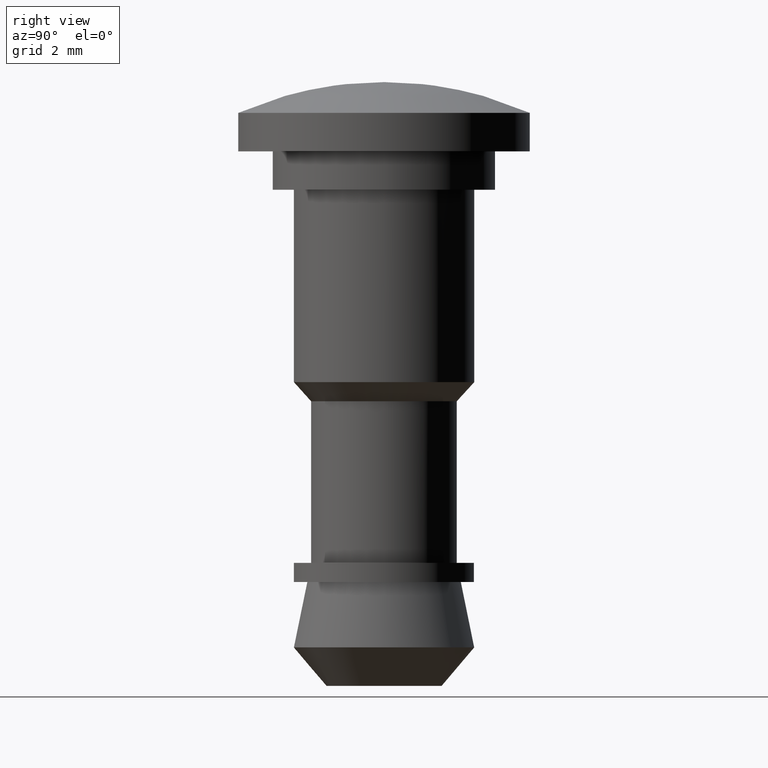
[diagram: clean part render]
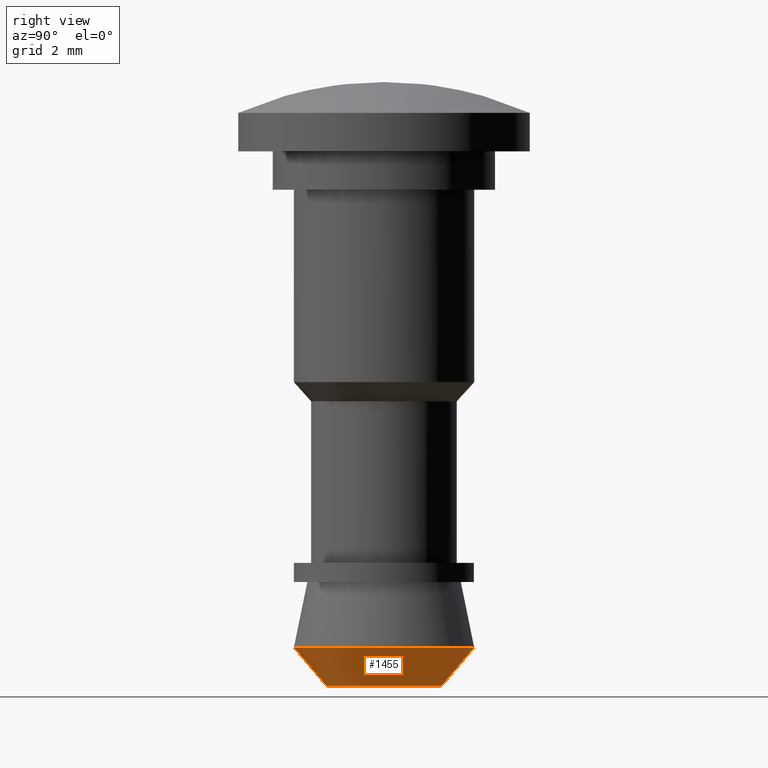
[diagram: same view with one face highlighted and labeled with its STEP entity id]
A machine part, right view. The second image highlights one B-rep face of the part: STEP entity #1455.
In plain terms, the highlighted face is a freeform B-spline surface patch.
Its self-contained STEP definition (entity closure, byte-faithful):
#1134=CARTESIAN_POINT('',(0.268134337341499,2.334633233307837,-11.899905292479900));
#1135=VERTEX_POINT('',#1134);
#1136=CARTESIAN_POINT('',(2.349980501392750,0.0,-11.899905292479019));
#1137=VERTEX_POINT('',#1136);
#1138=CARTESIAN_POINT('',(0.268134337341499,2.334633233307837,-11.899905292479904));
#1139=CARTESIAN_POINT('',(2.349980501392750,2.095531676072520,-11.899905292479025));
#1140=CARTESIAN_POINT('',(2.349980501392750,0.0,-11.899905292479019));
#1148=(BOUNDED_CURVE()B_SPLINE_CURVE(2,(#1138,#1139,#1140),.UNSPECIFIED.,.F.,.U.)B_SPLINE_CURVE_WITH_KNOTS((3,3),(0.269767755877433,0.500000000000000),.UNSPECIFIED.)CURVE()GEOMETRIC_REPRESENTATION_ITEM()RATIONAL_B_SPLINE_CURVE((0.957343736459039,0.730266147777187,1.0))REPRESENTATION_ITEM(''));
#1149=EDGE_CURVE('',#1135,#1137,#1148,.T.);
#1195=CARTESIAN_POINT('',(0.184377345145986,-2.342736295774616,-11.899905292474889));
#1196=VERTEX_POINT('',#1195);
#1210=CARTESIAN_POINT('',(2.349980501392750,0.0,-11.899905292479019));
#1211=CARTESIAN_POINT('',(2.349980501392750,-2.172299631016881,-11.899905292479023));
#1212=CARTESIAN_POINT('',(0.184377345145986,-2.342736295774616,-11.899905292474891));
#1220=(BOUNDED_CURVE()B_SPLINE_CURVE(2,(#1210,#1211,#1212),.UNSPECIFIED.,.F.,.U.)B_SPLINE_CURVE_WITH_KNOTS((3,3),(0.500000000000000,0.736331300628616),.UNSPECIFIED.)CURVE()GEOMETRIC_REPRESENTATION_ITEM()RATIONAL_B_SPLINE_CURVE((1.0,0.723120658610060,0.969723356163153))REPRESENTATION_ITEM(''));
#1221=EDGE_CURVE('',#1137,#1196,#1220,.T.);
#1248=CARTESIAN_POINT('',(-0.184377345145986,2.342736295774615,-11.899905292474889));
#1249=VERTEX_POINT('',#1248);
#1250=CARTESIAN_POINT('',(-0.184377345145986,2.342736295774615,-11.899905292474884));
#1251=CARTESIAN_POINT('',(-0.092330985394153,2.349980501392749,-11.899905292479023));
#1252=CARTESIAN_POINT('',(0.0,2.349980501392750,-11.899905292479019));
#1253=CARTESIAN_POINT('',(0.134506386268806,2.349980501392750,-11.899905292479028));
#1254=CARTESIAN_POINT('',(0.268134337341499,2.334633233307837,-11.899905292479909));
#1262=(BOUNDED_CURVE()B_SPLINE_CURVE(2,(#1250,#1251,#1252,#1253,#1254),.UNSPECIFIED.,.F.,.U.)B_SPLINE_CURVE_WITH_KNOTS((3,2,3),(0.236331300628616,0.250000000000000,0.269767755877433),.UNSPECIFIED.)CURVE()GEOMETRIC_REPRESENTATION_ITEM()RATIONAL_B_SPLINE_CURVE((0.969723356163153,0.983986122576488,1.0,0.976840633409361,0.957343736459040))REPRESENTATION_ITEM(''));
#1263=EDGE_CURVE('',#1249,#1135,#1262,.T.);
#1351=CARTESIAN_POINT('',(-0.117680797692838,1.495276308866803,-12.899999999998450));
#1352=VERTEX_POINT('',#1351);
#1353=CARTESIAN_POINT('',(-0.117680797692838,1.495276308866803,-12.899999999998450));
#1354=CARTESIAN_POINT('',(-0.184377345145986,2.342736295774615,-11.899905292474889));
#1355=QUASI_UNIFORM_CURVE('',1,(#1353,#1354),.UNSPECIFIED.,.F.,.U.);
#1356=EDGE_CURVE('',#1352,#1249,#1355,.T.);
#1373=CARTESIAN_POINT('',(0.117680797692838,-1.495276308866802,-12.899999999998450));
#1374=VERTEX_POINT('',#1373);
#1390=CARTESIAN_POINT('',(0.117680797692838,-1.495276308866802,-12.899999999998450));
#1391=CARTESIAN_POINT('',(0.184377345145986,-2.342736295774616,-11.899905292474889));
#1392=QUASI_UNIFORM_CURVE('',1,(#1390,#1391),.UNSPECIFIED.,.F.,.U.);
#1393=EDGE_CURVE('',#1374,#1196,#1392,.T.);
#1400=CARTESIAN_POINT('',(0.116013383996317,-1.474089809193642,-12.925002367688030));
#1401=CARTESIAN_POINT('',(1.590103193189958,-1.358076425197325,-12.925002367688025));
#1402=CARTESIAN_POINT('',(1.474089809193642,0.116013383996317,-12.925002367688030));
#1403=CARTESIAN_POINT('',(1.358076425197325,1.590103193189958,-12.925002367688025));
#1404=CARTESIAN_POINT('',(-0.116013383996317,1.474089809193642,-12.925002367688030));
#1405=CARTESIAN_POINT('',(0.186086444145377,-2.364452457937885,-11.874277865598801));
#1406=CARTESIAN_POINT('',(2.550538902083263,-2.178366013792509,-11.874277865598796));
#1407=CARTESIAN_POINT('',(2.364452457937885,0.186086444145377,-11.874277865598801));
#1408=CARTESIAN_POINT('',(2.178366013792509,2.550538902083263,-11.874277865598796));
#1409=CARTESIAN_POINT('',(-0.186086444145377,2.364452457937885,-11.874277865598801));
#1417=(BOUNDED_SURFACE()B_SPLINE_SURFACE(2,1,((#1400,#1405),(#1401,#1406),(#1402,#1407),(#1403,#1408),(#1404,#1409)),.UNSPECIFIED.,.F.,.F.,.U.)B_SPLINE_SURFACE_WITH_KNOTS((3,2,3),(2,2),(0.0,3.929666954417513,7.859333908835025),(0.0,1.0),.UNSPECIFIED.)GEOMETRIC_REPRESENTATION_ITEM()RATIONAL_B_SPLINE_SURFACE(((1.0,1.0),(0.707106781186548,0.707106781186548),(1.0,1.0),(0.707106781186548,0.707106781186548),(1.0,1.0)))REPRESENTATION_ITEM('')SURFACE());
#1418=ORIENTED_EDGE('',*,*,#1263,.T.);
#1419=ORIENTED_EDGE('',*,*,#1149,.T.);
#1420=ORIENTED_EDGE('',*,*,#1221,.T.);
#1421=ORIENTED_EDGE('',*,*,#1393,.F.);
#1422=CARTESIAN_POINT('',(1.499900000000000,0.0,-12.900000000000000));
#1423=VERTEX_POINT('',#1422);
#1424=CARTESIAN_POINT('',(1.499900000000000,0.0,-12.900000000000000));
#1425=CARTESIAN_POINT('',(1.499900000000000,-1.386493298418538,-12.899999999999999));
#1426=CARTESIAN_POINT('',(0.117680797692838,-1.495276308866803,-12.899999999998453));
#1434=(BOUNDED_CURVE()B_SPLINE_CURVE(2,(#1424,#1425,#1426),.UNSPECIFIED.,.F.,.U.)B_SPLINE_CURVE_WITH_KNOTS((3,3),(0.500000000000000,0.736331300630350),.UNSPECIFIED.)CURVE()GEOMETRIC_REPRESENTATION_ITEM()RATIONAL_B_SPLINE_CURVE((1.0,0.723120658608028,0.969723356166772))REPRESENTATION_ITEM(''));
#1435=EDGE_CURVE('',#1423,#1374,#1434,.T.);
#1436=ORIENTED_EDGE('',*,*,#1435,.F.);
#1437=CARTESIAN_POINT('',(-0.117680797692838,1.495276308866803,-12.899999999998453));
#1438=CARTESIAN_POINT('',(-0.058931231511392,1.499900000000000,-12.899999999999999));
#1439=CARTESIAN_POINT('',(0.0,1.499900000000000,-12.900000000000000));
#1440=CARTESIAN_POINT('',(1.499899999999999,1.499899999999999,-12.899999999999999));
#1441=CARTESIAN_POINT('',(1.499900000000000,0.0,-12.900000000000000));
#1449=(BOUNDED_CURVE()B_SPLINE_CURVE(2,(#1437,#1438,#1439,#1440,#1441),.UNSPECIFIED.,.F.,.U.)B_SPLINE_CURVE_WITH_KNOTS((3,2,3),(0.236331300630350,0.250000000000000,0.500000000000000),.UNSPECIFIED.)CURVE()GEOMETRIC_REPRESENTATION_ITEM()RATIONAL_B_SPLINE_CURVE((0.969723356166772,0.983986122578519,1.0,0.707106781186547,1.0))REPRESENTATION_ITEM(''));
#1450=EDGE_CURVE('',#1352,#1423,#1449,.T.);
#1451=ORIENTED_EDGE('',*,*,#1450,.F.);
#1452=ORIENTED_EDGE('',*,*,#1356,.T.);
#1453=EDGE_LOOP('',(#1418,#1419,#1420,#1421,#1436,#1451,#1452));
#1454=FACE_OUTER_BOUND('',#1453,.T.);
#1455=ADVANCED_FACE('',(#1454),#1417,.T.);